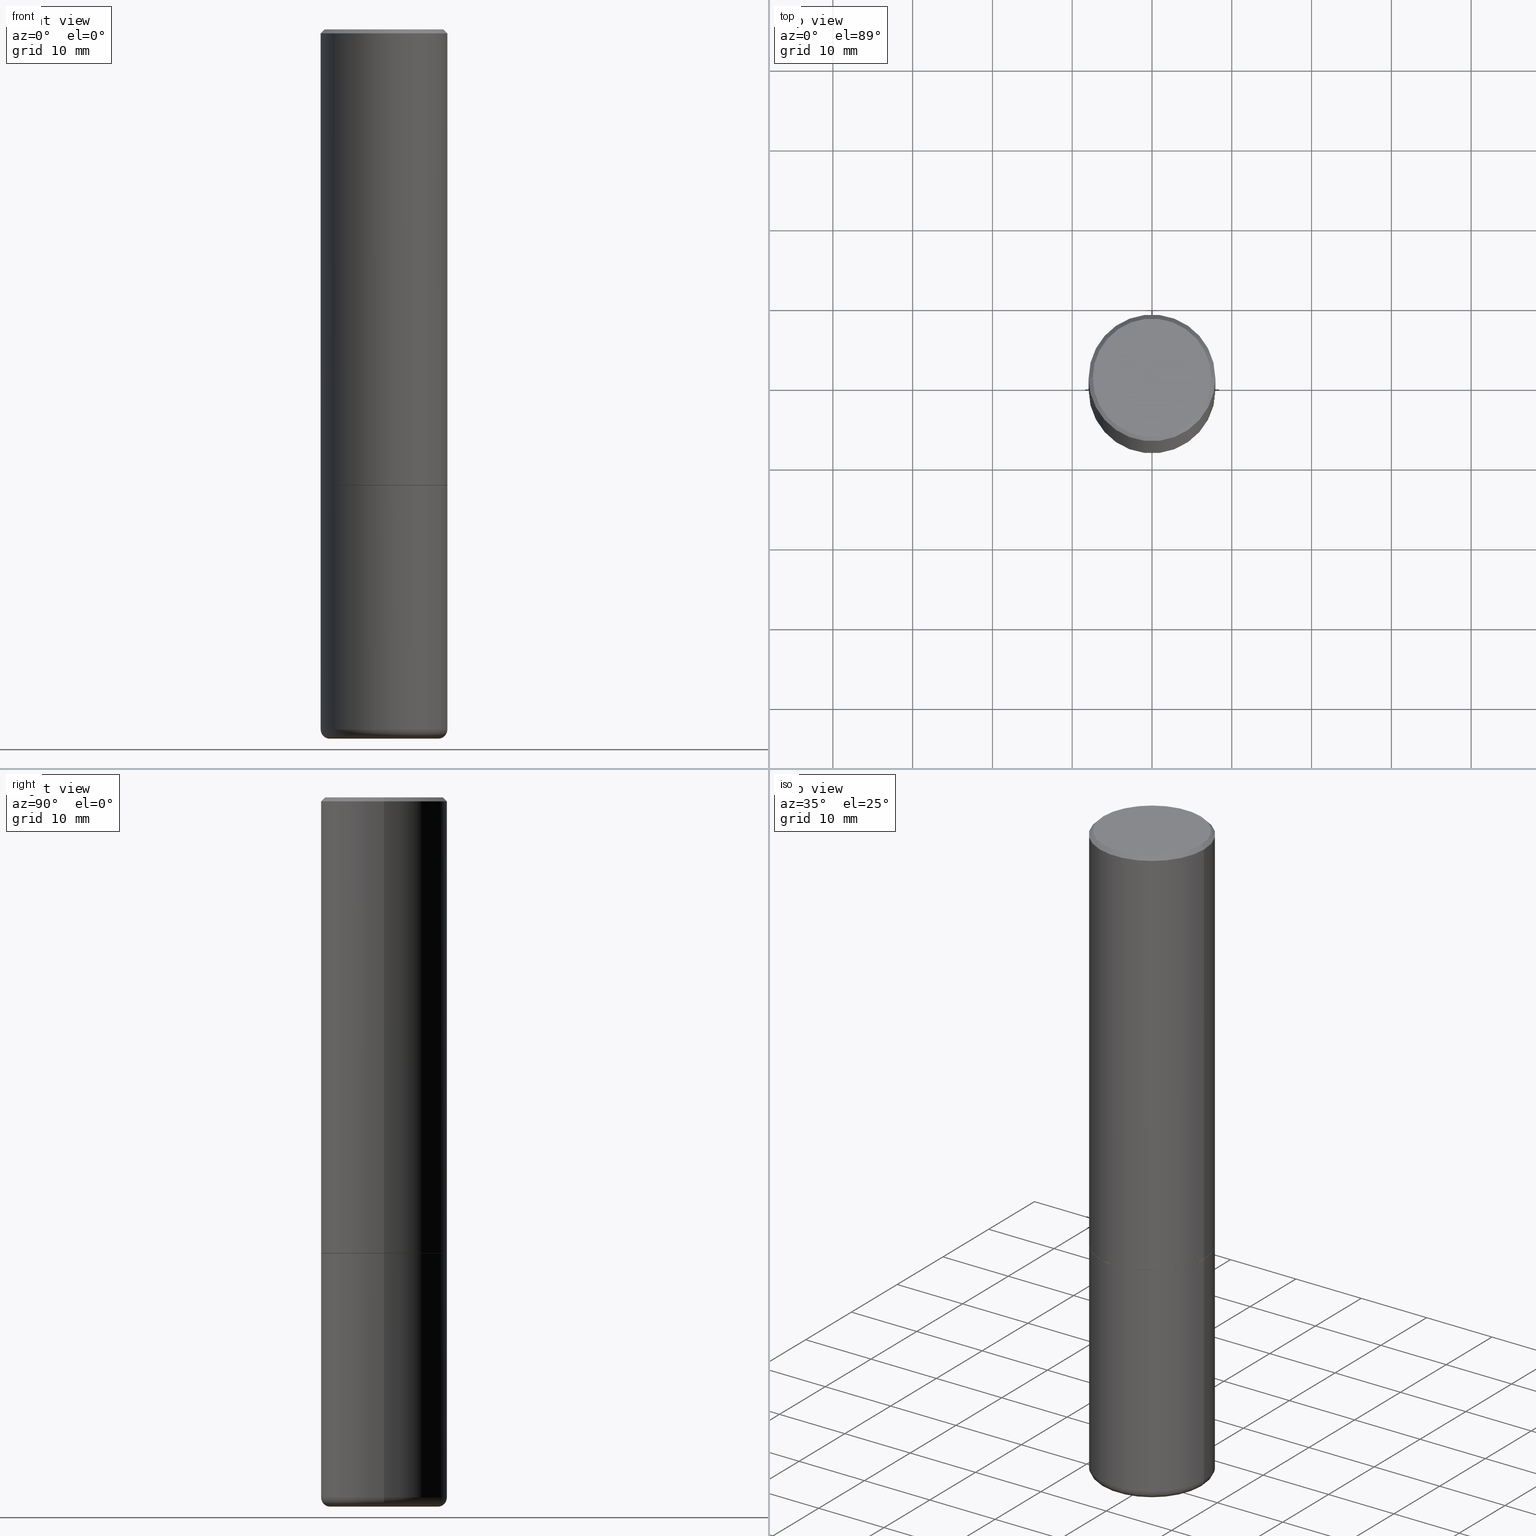
[diagram: canonical four-view strip — front | top / right | iso, engineering-drawing reading convention]
A machine part, canonical four-view strip (front | top / right | iso — engineering-drawing reading convention). The complete STEP part file that produces these views, byte-faithful:
ISO-10303-21;
HEADER;
FILE_DESCRIPTION (( 'STEP AP203' ),
    '1' );
FILE_NAME ('38079.STEP',
    '2023-03-22T20:16:01',
    ( '' ),
    ( '' ),
    'SwSTEP 2.0',
    'SolidWorks 2022',
    '' );
FILE_SCHEMA (( 'CONFIG_CONTROL_DESIGN' ));
ENDSEC;

DATA;
#1 = CARTESIAN_POINT ( 'NONE',  ( 0.000000000000000000, 0.000000000000000000, 0.000000000000000000 ) ) ;
#2 = EDGE_LOOP ( 'NONE', ( #237, #63, #130, #232 ) ) ;
#3 = CLOSED_SHELL ( 'NONE', ( #107, #300, #25, #86, #196, #268, #79, #350 ) ) ;
#4 = DIRECTION ( 'NONE',  ( 1.000000000000000000, -6.982962677686269077E-15, 0.000000000000000000 ) ) ;
#5 = CIRCLE ( 'NONE', #223, 0.3125000000000000000 ) ;
#6 = DIRECTION ( 'NONE',  ( 0.000000000000000000, 0.000000000000000000, 1.000000000000000000 ) ) ;
#7 = DIRECTION ( 'NONE',  ( -2.445468806185136877E-29, 3.491481338843145188E-15, 1.000000000000000000 ) ) ;
#8 = FACE_OUTER_BOUND ( 'NONE', #59, .T. ) ;
#9 = DIRECTION ( 'NONE',  ( -1.000000000000000000, 6.982962677686266711E-15, 0.000000000000000000 ) ) ;
#10 = CARTESIAN_POINT ( 'NONE',  ( -0.3125000000000000000, -7.739112131260931893E-15, -3.455061670936044216 ) ) ;
#11 = VERTEX_POINT ( 'NONE', #217 ) ;
#12 = FACE_OUTER_BOUND ( 'NONE', #153, .T. ) ;
#13 = EDGE_CURVE ( 'NONE', #442, #102, #303, .T. ) ;
#14 = FACE_OUTER_BOUND ( 'NONE', #299, .T. ) ;
#15 = AXIS2_PLACEMENT_3D ( 'NONE', #248, #353, #317 ) ;
#16 = LINE ( 'NONE', #122, #436 ) ;
#17 = FACE_OUTER_BOUND ( 'NONE', #339, .T. ) ;
#18 = DIRECTION ( 'NONE',  ( -2.445468806185136597E-29, 3.491481338843145583E-15, 1.000000000000000000 ) ) ;
#19 = DIRECTION ( 'NONE',  ( -0.9986295347545742773, 6.790662755453664522E-15, -0.05233595624293731902 ) ) ;
#20 = CC_DESIGN_PERSON_AND_ORGANIZATION_ASSIGNMENT ( #433, #121, ( #82 ) ) ;
#21 = CC_DESIGN_SECURITY_CLASSIFICATION ( #96, ( #258 ) ) ;
#22 = COORDINATED_UNIVERSAL_TIME_OFFSET ( 5, 0, .BEHIND. ) ;
#23 = LINE ( 'NONE', #163, #381 ) ;
#24 = CIRCLE ( 'NONE', #371, 0.3114999999999999991 ) ;
#25 = ADVANCED_FACE ( 'NONE', ( #242 ), #397, .T. ) ;
#26 = ORIENTED_EDGE ( 'NONE', *, *, #167, .T. ) ;
#27 = ORIENTED_EDGE ( 'NONE', *, *, #394, .T. ) ;
#28 = CIRCLE ( 'NONE', #366, 0.3114999999999999991 ) ;
#29 = LOCAL_TIME ( 16, 16, 1.000000000000000000, #288 ) ;
#30 = ORIENTED_EDGE ( 'NONE', *, *, #293, .T. ) ;
#31 = EDGE_LOOP ( 'NONE', ( #441, #170, #105, #140 ) ) ;
#32 = ADVANCED_FACE ( 'NONE', ( #383 ), #435, .F. ) ;
#33 = ORIENTED_EDGE ( 'NONE', *, *, #13, .T. ) ;
#34 = DIRECTION ( 'NONE',  ( 1.000000000000000000, -6.982962677686269077E-15, 0.000000000000000000 ) ) ;
#35 = CARTESIAN_POINT ( 'NONE',  ( 0.2651448819690678804, -1.407168150092053958E-14, -3.500000000000000000 ) ) ;
#36 = LINE ( 'NONE', #176, #404 ) ;
#37 = DIRECTION ( 'NONE',  ( 1.000000000000000000, -6.982962677686265133E-15, 0.000000000000000000 ) ) ;
#38 = LINE ( 'NONE', #354, #310 ) ;
#39 = DIRECTION ( 'NONE',  ( 2.445468806185136597E-29, -3.491481338843145583E-15, -1.000000000000000000 ) ) ;
#40 = CARTESIAN_POINT ( 'NONE',  ( -1.043851414335219820E-46, 1.490343170380447200E-32, 4.268512490100411279E-18 ) ) ;
#41 = CARTESIAN_POINT ( 'NONE',  ( -0.3125000000000000000, 2.220446049250313081E-15, -1.537167215704658232E-29 ) ) ;
#42 = ORIENTED_EDGE ( 'NONE', *, *, #372, .T. ) ;
#43 = LINE ( 'NONE', #307, #160 ) ;
#44 = DIRECTION ( 'NONE',  ( -2.445468806185136597E-29, 3.491481338843145583E-15, 1.000000000000000000 ) ) ;
#45 = DIRECTION ( 'NONE',  ( -2.445468806185136597E-29, 3.491481338843145583E-15, 1.000000000000000000 ) ) ;
#46 = LOCAL_TIME ( 16, 16, 1.000000000000000000, #152 ) ;
#47 = APPROVAL_ROLE ( '' ) ;
#48 = DIRECTION ( 'NONE',  ( -1.000000000000000000, 6.982962677686266711E-15, 0.000000000000000000 ) ) ;
#49 = CC_DESIGN_PERSON_AND_ORGANIZATION_ASSIGNMENT ( #229, #261, ( #96 ) ) ;
#50 = PERSON_AND_ORGANIZATION ( #146, #400 ) ;
#51 = FACE_OUTER_BOUND ( 'NONE', #74, .T. ) ;
#52 = MANIFOLD_SOLID_BREP ( 'Body-Move/Copy2[2]', #3 ) ;
#53 = CONICAL_SURFACE ( 'NONE', #139, 0.3124999999999998335, 0.7853981633974473908 ) ;
#54 = EDGE_CURVE ( 'NONE', #179, #337, #278, .T. ) ;
#55 = CC_DESIGN_DATE_AND_TIME_ASSIGNMENT ( #195, #254, ( #96 ) ) ;
#56 = AXIS2_PLACEMENT_3D ( 'NONE', #349, #379, #418 ) ;
#57 = AXIS2_PLACEMENT_3D ( 'NONE', #177, #285, #65 ) ;
#58 = ORIENTED_EDGE ( 'NONE', *, *, #365, .F. ) ;
#59 = EDGE_LOOP ( 'NONE', ( #93, #405, #94, #409 ) ) ;
#60 = ORIENTED_EDGE ( 'NONE', *, *, #365, .T. ) ;
#61 = VECTOR ( 'NONE', #312, 39.37007874015748143 ) ;
#62 = LOCAL_TIME ( 16, 16, 1.000000000000000000, #22 ) ;
#63 = ORIENTED_EDGE ( 'NONE', *, *, #387, .T. ) ;
#64 = EDGE_LOOP ( 'NONE', ( #172, #336, #27, #403 ) ) ;
#65 = DIRECTION ( 'NONE',  ( 1.000000000000000000, -6.982962677686266711E-15, 4.876176775795936353E-29 ) ) ;
#66 = CARTESIAN_POINT ( 'NONE',  ( -0.3125000000000000000, -7.739112131260931893E-15, -2.249999999999999556 ) ) ;
#67 = LINE ( 'NONE', #209, #61 ) ;
#68 = DIRECTION ( 'NONE',  ( -2.445468806185136597E-29, 3.491481338843145583E-15, 1.000000000000000000 ) ) ;
#69 = CARTESIAN_POINT ( 'NONE',  ( -0.2675000000000000155, -1.016258153046714615E-14, -3.455061670936044216 ) ) ;
#70 = CARTESIAN_POINT ( 'NONE',  ( 4.890937612370278413E-31, -6.982962677686297772E-17, -0.02000000000000002123 ) ) ;
#71 = CARTESIAN_POINT ( 'NONE',  ( -0.2924999999999998157, 2.077431396611662611E-15, 4.268512490086005323E-18 ) ) ;
#72 = CIRCLE ( 'NONE', #438, 0.2924999999999998157 ) ;
#73 =( NAMED_UNIT ( * ) PLANE_ANGLE_UNIT ( ) SI_UNIT ( $, .RADIAN. ) );
#74 = EDGE_LOOP ( 'NONE', ( #199, #239 ) ) ;
#75 = EDGE_CURVE ( 'NONE', #375, #102, #87, .T. ) ;
#76 =( CONVERSION_BASED_UNIT ( 'INCH', #147 ) LENGTH_UNIT ( ) NAMED_UNIT ( #301 ) );
#77 = FACE_OUTER_BOUND ( 'NONE', #31, .T. ) ;
#78 = CARTESIAN_POINT ( 'NONE',  ( -0.3125000000000000000, -1.740639529667232739E-15, -2.248999999999999222 ) ) ;
#79 = ADVANCED_FACE ( 'NONE', ( #14 ), #245, .F. ) ;
#80 = ORIENTED_EDGE ( 'NONE', *, *, #54, .T. ) ;
#81 = CIRCLE ( 'NONE', #333, 0.2651448819690678804 ) ;
#82 = PRODUCT_DEFINITION ( 'UNKNOWN', '', #258, #135 ) ;
#83 = SHAPE_DEFINITION_REPRESENTATION ( #189, #326 ) ;
#84 = PRODUCT ( '38079', '38079', '', ( #321 ) ) ;
#85 = LINE ( 'NONE', #364, #412 ) ;
#86 = ADVANCED_FACE ( 'NONE', ( #150 ), #53, .T. ) ;
#87 = CIRCLE ( 'NONE', #15, 0.04499999999999999833 ) ;
#88 = CIRCLE ( 'NONE', #296, 0.3125000000000000000 ) ;
#89 = CC_DESIGN_APPROVAL ( #128, ( #258 ) ) ;
#90 = DATE_TIME_ROLE ( 'creation_date' ) ;
#91 = CARTESIAN_POINT ( 'NONE',  ( -0.3114999999999999991, -5.642492390504364798E-15, -2.249999999999999556 ) ) ;
#92 = EDGE_CURVE ( 'NONE', #99, #235, #28, .T. ) ;
#93 = ORIENTED_EDGE ( 'NONE', *, *, #331, .F. ) ;
#94 = ORIENTED_EDGE ( 'NONE', *, *, #145, .T. ) ;
#95 = AXIS2_PLACEMENT_3D ( 'NONE', #69, #352, #241 ) ;
#96 = SECURITY_CLASSIFICATION ( '', '', #286 ) ;
#97 = VERTEX_POINT ( 'NONE', #184 ) ;
#98 = EDGE_LOOP ( 'NONE', ( #134, #202, #385 ) ) ;
#99 = VERTEX_POINT ( 'NONE', #250 ) ;
#100 = CIRCLE ( 'NONE', #114, 0.3125000000000000000 ) ;
#101 = DIRECTION ( 'NONE',  ( -2.445468806185136597E-29, 3.491481338843145583E-15, 1.000000000000000000 ) ) ;
#102 = VERTEX_POINT ( 'NONE', #148 ) ;
#103 = EDGE_CURVE ( 'NONE', #165, #337, #67, .T. ) ;
#104 = DIRECTION ( 'NONE',  ( -0.7071067811865469066, 2.468850131082250355E-15, -0.7071067811865481278 ) ) ;
#105 = ORIENTED_EDGE ( 'NONE', *, *, #293, .F. ) ;
#106 = CYLINDRICAL_SURFACE ( 'NONE', #357, 0.3124999999999998890 ) ;
#107 = ADVANCED_FACE ( 'NONE', ( #77 ), #185, .T. ) ;
#108 = DIRECTION ( 'NONE',  ( -2.445468806185136877E-29, 3.491481338843145188E-15, 1.000000000000000000 ) ) ;
#109 = DIRECTION ( 'NONE',  ( -2.445468806185136597E-29, 3.491481338843145583E-15, 1.000000000000000000 ) ) ;
#110 = DIRECTION ( 'NONE',  ( -2.445468806185136597E-29, 3.491481338843145583E-15, 1.000000000000000000 ) ) ;
#111 = CARTESIAN_POINT ( 'NONE',  ( 0.3125000000000000000, -2.182175836776958347E-15, 1.523805242436230075E-29 ) ) ;
#112 = AXIS2_PLACEMENT_3D ( 'NONE', #388, #39, #143 ) ;
#113 = ORIENTED_EDGE ( 'NONE', *, *, #167, .F. ) ;
#114 = AXIS2_PLACEMENT_3D ( 'NONE', #173, #309, #4 ) ;
#115 = DIRECTION ( 'NONE',  ( 1.000000000000000000, -6.982962677686265133E-15, 0.000000000000000000 ) ) ;
#116 = DIRECTION ( 'NONE',  ( 1.000000000000000000, -6.982962677686269077E-15, 0.000000000000000000 ) ) ;
#117 = CARTESIAN_POINT ( 'NONE',  ( 5.502304813916556222E-29, -7.855833012397076871E-15, -2.249999999999999556 ) ) ;
#118 = CARTESIAN_POINT ( 'NONE',  ( 5.502304813916556222E-29, -7.855833012397076871E-15, -2.249999999999999556 ) ) ;
#119 = DIRECTION ( 'NONE',  ( -1.000000000000000000, 6.982962677686265922E-15, -4.876176775795935793E-29 ) ) ;
#120 = EDGE_CURVE ( 'NONE', #407, #179, #36, .T. ) ;
#121 = PERSON_AND_ORGANIZATION_ROLE ( 'creator' ) ;
#122 = CARTESIAN_POINT ( 'NONE',  ( 0.3114999999999999991, -1.003102588649634920E-14, -2.249999999999999556 ) ) ;
#123 = DIRECTION ( 'NONE',  ( -2.445468806185136597E-29, 3.491481338843145583E-15, 1.000000000000000000 ) ) ;
#124 = VECTOR ( 'NONE', #410, 39.37007874015748143 ) ;
#125 = CARTESIAN_POINT ( 'NONE',  ( -0.3124999999999998335, 2.112346210000093866E-15, -0.02000000000000002123 ) ) ;
#126 = PERSON_AND_ORGANIZATION ( #146, #400 ) ;
#127 = CIRCLE ( 'NONE', #320, 0.3125000000000000000 ) ;
#128 = APPROVAL ( #283, 'UNSPECIFIED' ) ;
#129 = DIRECTION ( 'NONE',  ( -2.445468806185136597E-29, 3.491481338843145583E-15, 1.000000000000000000 ) ) ;
#130 = ORIENTED_EDGE ( 'NONE', *, *, #75, .T. ) ;
#131 = AXIS2_PLACEMENT_3D ( 'NONE', #356, #221, #115 ) ;
#132 = ORIENTED_EDGE ( 'NONE', *, *, #372, .F. ) ;
#133 = EDGE_CURVE ( 'NONE', #375, #253, #399, .T. ) ;
#134 = ORIENTED_EDGE ( 'NONE', *, *, #340, .F. ) ;
#135 = DESIGN_CONTEXT ( 'detailed design', #319, 'design' ) ;
#136 = CARTESIAN_POINT ( 'NONE',  ( 8.449245539719989979E-29, -1.206328334862541465E-14, -3.455061670936044216 ) ) ;
#137 = CC_DESIGN_DATE_AND_TIME_ASSIGNMENT ( #158, #90, ( #82 ) ) ;
#138 = ORIENTED_EDGE ( 'NONE', *, *, #92, .F. ) ;
#139 = AXIS2_PLACEMENT_3D ( 'NONE', #70, #420, #187 ) ;
#140 = ORIENTED_EDGE ( 'NONE', *, *, #145, .F. ) ;
#141 = DIRECTION ( 'NONE',  ( 1.000000000000000000, -6.982962677686266711E-15, 4.876176775795935232E-29 ) ) ;
#142 = DIRECTION ( 'NONE',  ( 1.000000000000000000, 0.000000000000000000, 0.000000000000000000 ) ) ;
#143 = DIRECTION ( 'NONE',  ( -1.000000000000000000, 6.982962677686265133E-15, 0.000000000000000000 ) ) ;
#144 = DIRECTION ( 'NONE',  ( 1.000000000000000000, -6.982962677686265922E-15, 0.000000000000000000 ) ) ;
#145 = EDGE_CURVE ( 'NONE', #235, #407, #16, .T. ) ;
#146 = PERSON ( 'UNSPECIFIED', 'UNSPECIFIED', 'UNSPECIFIED', ('UNSPECIFIED'), ('UNSPECIFIED'), ('UNSPECIFIED') ) ;
#147 = LENGTH_MEASURE_WITH_UNIT ( LENGTH_MEASURE( 0.02539999999999999897 ), #208 );
#148 = CARTESIAN_POINT ( 'NONE',  ( 0.3125000000000000000, -1.424545918540237458E-14, -3.455061670936044216 ) ) ;
#149 = CARTESIAN_POINT ( 'NONE',  ( 0.3114999999999999991, -1.003102588649634920E-14, -2.249999999999999556 ) ) ;
#150 = FACE_OUTER_BOUND ( 'NONE', #64, .T. ) ;
#151 = DIRECTION ( 'NONE',  ( -2.445468806185136597E-29, 3.491481338843145583E-15, 1.000000000000000000 ) ) ;
#152 = COORDINATED_UNIVERSAL_TIME_OFFSET ( 5, 0, .BEHIND. ) ;
#153 = EDGE_LOOP ( 'NONE', ( #26, #60 ) ) ;
#154 = CARTESIAN_POINT ( 'NONE',  ( -0.2651448819690678804, -1.008952714362760311E-14, -3.500000000000000000 ) ) ;
#155 = DIRECTION ( 'NONE',  ( 1.000000000000000000, -6.982962677686269077E-15, 0.000000000000000000 ) ) ;
#156 = EDGE_CURVE ( 'NONE', #165, #407, #127, .T. ) ;
#157 = PLANE ( 'NONE',  #197 ) ;
#158 = DATE_AND_TIME ( #427, #46 ) ;
#159 = CYLINDRICAL_SURFACE ( 'NONE', #279, 0.3125000000000000000 ) ;
#160 = VECTOR ( 'NONE', #183, 39.37007874015748854 ) ;
#161 = ADVANCED_FACE ( 'NONE', ( #287 ), #338, .F. ) ;
#162 = PERSON_AND_ORGANIZATION ( #146, #400 ) ;
#163 = CARTESIAN_POINT ( 'NONE',  ( 0.3124999999999998335, -2.213735251080465334E-15, -0.02000000000000002123 ) ) ;
#164 = VECTOR ( 'NONE', #360, 39.37007874015748143 ) ;
#165 = VERTEX_POINT ( 'NONE', #78 ) ;
#166 = ORIENTED_EDGE ( 'NONE', *, *, #280, .T. ) ;
#167 = EDGE_CURVE ( 'NONE', #411, #440, #168, .T. ) ;
#168 = CIRCLE ( 'NONE', #131, 0.3125000000000000000 ) ;
#169 = ORIENTED_EDGE ( 'NONE', *, *, #133, .T. ) ;
#170 = ORIENTED_EDGE ( 'NONE', *, *, #331, .T. ) ;
#171 = LINE ( 'NONE', #41, #272 ) ;
#172 = ORIENTED_EDGE ( 'NONE', *, *, #324, .F. ) ;
#173 = CARTESIAN_POINT ( 'NONE',  ( 5.499859345110370619E-29, -7.852341531058232286E-15, -2.248999999999999222 ) ) ;
#174 = CIRCLE ( 'NONE', #95, 0.04499999999999999833 ) ;
#175 = PERSON_AND_ORGANIZATION_ROLE ( 'design_owner' ) ;
#176 = CARTESIAN_POINT ( 'NONE',  ( 0.3124999999999998890, -2.182175836776957558E-15, 1.523805242436229235E-29 ) ) ;
#177 = CARTESIAN_POINT ( 'NONE',  ( 0.000000000000000000, 0.000000000000000000, 0.000000000000000000 ) ) ;
#178 = CARTESIAN_POINT ( 'NONE',  ( 8.559140821647976968E-29, -1.222018468595100934E-14, -3.500000000000000000 ) ) ;
#179 = VERTEX_POINT ( 'NONE', #318 ) ;
#180 = DIRECTION ( 'NONE',  ( -2.445468806185136597E-29, 3.491481338843145583E-15, 1.000000000000000000 ) ) ;
#181 = CARTESIAN_POINT ( 'NONE',  ( 0.3125000000000000000, -1.003451736783519063E-14, -2.248999999999999222 ) ) ;
#182 = DIRECTION ( 'NONE',  ( -2.438088387897960049E-29, 3.491481338843145188E-15, 1.000000000000000000 ) ) ;
#183 = DIRECTION ( 'NONE',  ( 0.9986295347545742773, -7.033825938272000278E-15, -0.05233595624293731902 ) ) ;
#184 = CARTESIAN_POINT ( 'NONE',  ( 0.2924999999999998157, -2.110215457714318748E-15, 4.268512490114932791E-18 ) ) ;
#185 = CONICAL_SURFACE ( 'NONE', #392, 0.3114999999999999991, 0.7853981633972775267 ) ;
#186 = DIRECTION ( 'NONE',  ( 1.000000000000000000, -6.982962677686266711E-15, 4.876067333457692840E-29 ) ) ;
#187 = DIRECTION ( 'NONE',  ( -1.000000000000000000, 6.982962677686265133E-15, 0.000000000000000000 ) ) ;
#188 = DATE_AND_TIME ( #395, #234 ) ;
#189 = PRODUCT_DEFINITION_SHAPE ( 'NONE', 'NONE',  #82 ) ;
#190 = DATE_AND_TIME ( #330, #406 ) ;
#191 = AXIS2_PLACEMENT_3D ( 'NONE', #274, #109, #116 ) ;
#192 = CARTESIAN_POINT ( 'NONE',  ( 2.042516583223231356E-15, 0.2924999999999998157, -1.019124035366569212E-15 ) ) ;
#193 = AXIS2_PLACEMENT_3D ( 'NONE', #380, #68, #37 ) ;
#194 = AXIS2_PLACEMENT_3D ( 'NONE', #214, #44, #322 ) ;
#195 = DATE_AND_TIME ( #230, #29 ) ;
#196 = ADVANCED_FACE ( 'NONE', ( #17 ), #210, .T. ) ;
#197 = AXIS2_PLACEMENT_3D ( 'NONE', #192, #432, #224 ) ;
#198 = ORIENTED_EDGE ( 'NONE', *, *, #240, .F. ) ;
#199 = ORIENTED_EDGE ( 'NONE', *, *, #231, .T. ) ;
#200 = EDGE_LOOP ( 'NONE', ( #281, #437, #236 ) ) ;
#201 = AXIS2_PLACEMENT_3D ( 'NONE', #249, #151, #141 ) ;
#202 = ORIENTED_EDGE ( 'NONE', *, *, #431, .T. ) ;
#203 = MANIFOLD_SOLID_BREP ( 'Body-Move/Copy2[1]', #332 ) ;
#204 = DIRECTION ( 'NONE',  ( 1.000000000000000000, -6.982962677686266711E-15, 0.000000000000000000 ) ) ;
#205 = EDGE_LOOP ( 'NONE', ( #30, #367, #370, #269 ) ) ;
#206 = CARTESIAN_POINT ( 'NONE',  ( 5.502304813916556222E-29, -7.855833012397076871E-15, -2.249999999999999556 ) ) ;
#207 = ADVANCED_FACE ( 'NONE', ( #246 ), #238, .T. ) ;
#208 =( LENGTH_UNIT ( ) NAMED_UNIT ( * ) SI_UNIT ( $, .METRE. ) );
#209 = CARTESIAN_POINT ( 'NONE',  ( -0.3124999999999998890, 2.220446049250312292E-15, -1.537167215704657391E-29 ) ) ;
#210 = CYLINDRICAL_SURFACE ( 'NONE', #201, 0.3124999999999998890 ) ;
#211 = CIRCLE ( 'NONE', #193, 0.3124999999999998335 ) ;
#212 = APPROVAL_STATUS ( 'not_yet_approved' ) ;
#213 = APPROVAL_PERSON_ORGANIZATION ( #50, #128, #363 ) ;
#214 = CARTESIAN_POINT ( 'NONE',  ( 8.559140821647976968E-29, -1.222018468595100934E-14, -3.500000000000000000 ) ) ;
#215 = CARTESIAN_POINT ( 'NONE',  ( -1.043851414335219820E-46, 1.490343170380447200E-32, 4.268512490100411279E-18 ) ) ;
#216 = DIRECTION ( 'NONE',  ( -2.445468806185136597E-29, 3.491481338843145583E-15, 1.000000000000000000 ) ) ;
#217 = CARTESIAN_POINT ( 'NONE',  ( 8.525821692348990207E-29, -1.217071987343207654E-14, -3.486104345547738514 ) ) ;
#218 = EDGE_CURVE ( 'NONE', #235, #99, #24, .T. ) ;
#219 = APPLICATION_PROTOCOL_DEFINITION ( 'international standard', 'config_control_design', 1994, #298 ) ;
#220 = DIRECTION ( 'NONE',  ( 1.000000000000000000, -6.982962677686265922E-15, 0.000000000000000000 ) ) ;
#221 = DIRECTION ( 'NONE',  ( -2.445468806185136597E-29, 3.491481338843145583E-15, 1.000000000000000000 ) ) ;
#222 = DIRECTION ( 'NONE',  ( 2.445468806185136597E-29, -3.491481338843145583E-15, -1.000000000000000000 ) ) ;
#223 = AXIS2_PLACEMENT_3D ( 'NONE', #257, #129, #378 ) ;
#224 = DIRECTION ( 'NONE',  ( -1.000000000000000000, 6.982962677686265922E-15, -4.876176775795935793E-29 ) ) ;
#225 = COORDINATED_UNIVERSAL_TIME_OFFSET ( 5, 0, .BEHIND. ) ;
#226 = DIRECTION ( 'NONE',  ( 1.000000000000000000, -6.982962677686266711E-15, 4.876176775795935232E-29 ) ) ;
#227 = APPROVAL_DATE_TIME ( #424, #264 ) ;
#228 = ADVANCED_FACE ( 'NONE', ( #12 ), #251, .F. ) ;
#229 = PERSON_AND_ORGANIZATION ( #146, #400 ) ;
#230 = CALENDAR_DATE ( 2023, 22, 3 ) ;
#231 = EDGE_CURVE ( 'NONE', #265, #97, #362, .T. ) ;
#232 = ORIENTED_EDGE ( 'NONE', *, *, #13, .F. ) ;
#233 = AXIS2_PLACEMENT_3D ( 'NONE', #345, #373, #9 ) ;
#234 = LOCAL_TIME ( 16, 16, 1.000000000000000000, #260 ) ;
#235 = VERTEX_POINT ( 'NONE', #149 ) ;
#236 = ORIENTED_EDGE ( 'NONE', *, *, #133, .F. ) ;
#237 = ORIENTED_EDGE ( 'NONE', *, *, #408, .F. ) ;
#238 = TOROIDAL_SURFACE ( 'NONE', #256, 0.2675000000000000155, 0.04499999999999999140 ) ;
#239 = ORIENTED_EDGE ( 'NONE', *, *, #295, .T. ) ;
#240 = EDGE_CURVE ( 'NONE', #337, #179, #211, .T. ) ;
#241 = DIRECTION ( 'NONE',  ( -1.000000000000000000, 7.105427357600990815E-15, 0.000000000000000000 ) ) ;
#242 = FACE_OUTER_BOUND ( 'NONE', #325, .T. ) ;
#243 = CARTESIAN_POINT ( 'NONE',  ( 0.000000000000000000, 0.000000000000000000, 0.000000000000000000 ) ) ;
#244 =( NAMED_UNIT ( * ) SI_UNIT ( $, .STERADIAN. ) SOLID_ANGLE_UNIT ( ) );
#245 = PLANE ( 'NONE',  #267 ) ;
#246 = FACE_OUTER_BOUND ( 'NONE', #2, .T. ) ;
#247 = FACE_OUTER_BOUND ( 'NONE', #305, .T. ) ;
#248 = CARTESIAN_POINT ( 'NONE',  ( 0.2675000000000000155, -1.393122586490649131E-14, -3.455061670936044216 ) ) ;
#249 = CARTESIAN_POINT ( 'NONE',  ( 0.000000000000000000, 0.000000000000000000, 0.000000000000000000 ) ) ;
#250 = CARTESIAN_POINT ( 'NONE',  ( -0.3114999999999999991, -5.637193936156142396E-15, -2.249999999999999556 ) ) ;
#251 = PLANE ( 'NONE',  #346 ) ;
#252 = APPROVAL_STATUS ( 'not_yet_approved' ) ;
#253 = VERTEX_POINT ( 'NONE', #154 ) ;
#254 = DATE_TIME_ROLE ( 'classification_date' ) ;
#255 = CARTESIAN_POINT ( 'NONE',  ( 5.499859345110370619E-29, -7.852341531058232286E-15, -2.248999999999999222 ) ) ;
#256 = AXIS2_PLACEMENT_3D ( 'NONE', #344, #282, #423 ) ;
#257 = CARTESIAN_POINT ( 'NONE',  ( 5.502304813916556222E-29, -7.855833012397075293E-15, -2.249999999999999556 ) ) ;
#258 = PRODUCT_DEFINITION_FORMATION_WITH_SPECIFIED_SOURCE ( 'ANY', '', #84, .NOT_KNOWN. ) ;
#259 = CC_DESIGN_PERSON_AND_ORGANIZATION_ASSIGNMENT ( #393, #358, ( #258 ) ) ;
#260 = COORDINATED_UNIVERSAL_TIME_OFFSET ( 5, 0, .BEHIND. ) ;
#261 = PERSON_AND_ORGANIZATION_ROLE ( 'classification_officer' ) ;
#262 = APPROVAL_DATE_TIME ( #188, #390 ) ;
#263 = ADVANCED_FACE ( 'NONE', ( #313 ), #323, .T. ) ;
#264 = APPROVAL ( #252, 'UNSPECIFIED' ) ;
#265 = VERTEX_POINT ( 'NONE', #71 ) ;
#266 = ORIENTED_EDGE ( 'NONE', *, *, #156, .T. ) ;
#267 = AXIS2_PLACEMENT_3D ( 'NONE', #355, #182, #277 ) ;
#268 = ADVANCED_FACE ( 'NONE', ( #8 ), #382, .T. ) ;
#269 = ORIENTED_EDGE ( 'NONE', *, *, #120, .F. ) ;
#270 = ORIENTED_EDGE ( 'NONE', *, *, #295, .F. ) ;
#271 = ORIENTED_EDGE ( 'NONE', *, *, #401, .T. ) ;
#272 = VECTOR ( 'NONE', #108, 39.37007874015748143 ) ;
#273 = PERSON_AND_ORGANIZATION ( #146, #400 ) ;
#274 = CARTESIAN_POINT ( 'NONE',  ( 8.449245539719989979E-29, -1.206328334862541465E-14, -3.455061670936044216 ) ) ;
#275 = DIRECTION ( 'NONE',  ( 1.000000000000000000, -6.982962677686266711E-15, 4.876067333457692840E-29 ) ) ;
#276 = CARTESIAN_POINT ( 'NONE',  ( 5.502304813916556222E-29, -7.855833012397076871E-15, -2.249999999999999556 ) ) ;
#277 = DIRECTION ( 'NONE',  ( 1.000000000000000000, -6.982962677686265922E-15, 4.876176775795935793E-29 ) ) ;
#278 = CIRCLE ( 'NONE', #56, 0.3124999999999998335 ) ;
#279 = AXIS2_PLACEMENT_3D ( 'NONE', #294, #123, #290 ) ;
#280 = EDGE_CURVE ( 'NONE', #102, #442, #88, .T. ) ;
#281 = ORIENTED_EDGE ( 'NONE', *, *, #431, .F. ) ;
#282 = DIRECTION ( 'NONE',  ( -2.445468806185136597E-29, 3.491481338843145583E-15, 1.000000000000000000 ) ) ;
#283 = APPROVAL_STATUS ( 'not_yet_approved' ) ;
#284 = EDGE_LOOP ( 'NONE', ( #166, #42, #113, #335 ) ) ;
#285 = DIRECTION ( 'NONE',  ( -2.445468806185136597E-29, 3.491481338843145583E-15, 1.000000000000000000 ) ) ;
#286 = SECURITY_CLASSIFICATION_LEVEL ( 'unclassified' ) ;
#287 = FACE_OUTER_BOUND ( 'NONE', #200, .T. ) ;
#288 = COORDINATED_UNIVERSAL_TIME_OFFSET ( 5, 0, .BEHIND. ) ;
#289 = AXIS2_PLACEMENT_3D ( 'NONE', #136, #101, #413 ) ;
#290 = DIRECTION ( 'NONE',  ( 1.000000000000000000, -6.982962677686266711E-15, 4.876176775795936353E-29 ) ) ;
#291 =( GEOMETRIC_REPRESENTATION_CONTEXT ( 3 ) GLOBAL_UNCERTAINTY_ASSIGNED_CONTEXT ( ( #402 ) ) GLOBAL_UNIT_ASSIGNED_CONTEXT ( ( #76, #73, #244 ) ) REPRESENTATION_CONTEXT ( 'NONE', 'WORKASPACE' ) );
#292 = PERSON_AND_ORGANIZATION_ROLE ( 'design_supplier' ) ;
#293 = EDGE_CURVE ( 'NONE', #407, #165, #100, .T. ) ;
#294 = CARTESIAN_POINT ( 'NONE',  ( 0.000000000000000000, 0.000000000000000000, 0.000000000000000000 ) ) ;
#295 = EDGE_CURVE ( 'NONE', #97, #265, #72, .T. ) ;
#296 = AXIS2_PLACEMENT_3D ( 'NONE', #342, #110, #34 ) ;
#297 = CC_DESIGN_APPROVAL ( #264, ( #96 ) ) ;
#298 = APPLICATION_CONTEXT ( 'configuration controlled 3d designs of mechanical parts and assemblies' ) ;
#299 = EDGE_LOOP ( 'NONE', ( #341, #138 ) ) ;
#300 = ADVANCED_FACE ( 'NONE', ( #415 ), #106, .T. ) ;
#301 = DIMENSIONAL_EXPONENTS ( 1.000000000000000000, 0.000000000000000000, 0.000000000000000000, 0.000000000000000000, 0.000000000000000000, 0.000000000000000000, 0.000000000000000000 ) ;
#302 = ORIENTED_EDGE ( 'NONE', *, *, #324, .T. ) ;
#303 = CIRCLE ( 'NONE', #191, 0.3125000000000000000 ) ;
#304 = AXIS2_PLACEMENT_3D ( 'NONE', #206, #351, #144 ) ;
#305 = EDGE_LOOP ( 'NONE', ( #169, #422, #369, #359 ) ) ;
#306 = ORIENTED_EDGE ( 'NONE', *, *, #120, .T. ) ;
#307 = CARTESIAN_POINT ( 'NONE',  ( 9.483943079349222990E-19, -1.217166826773992568E-14, -3.486104345547738514 ) ) ;
#308 = ORIENTED_EDGE ( 'NONE', *, *, #394, .F. ) ;
#309 = DIRECTION ( 'NONE',  ( -2.445468806185136597E-29, 3.491481338843145583E-15, 1.000000000000000000 ) ) ;
#310 = VECTOR ( 'NONE', #104, 39.37007874015748143 ) ;
#311 = LINE ( 'NONE', #111, #124 ) ;
#312 = DIRECTION ( 'NONE',  ( -2.445468806185136877E-29, 3.491481338843145188E-15, 1.000000000000000000 ) ) ;
#313 = FACE_OUTER_BOUND ( 'NONE', #284, .T. ) ;
#314 = APPROVAL_ROLE ( '' ) ;
#315 = CARTESIAN_POINT ( 'NONE',  ( 1.048034588882512041E-27, -1.496315634977850062E-13, -42.85618308570521862 ) ) ;
#316 = DIRECTION ( 'NONE',  ( 1.000000000000000000, -6.982962677686265922E-15, 0.000000000000000000 ) ) ;
#317 = DIRECTION ( 'NONE',  ( 1.000000000000000000, -6.982962677686269077E-15, 0.000000000000000000 ) ) ;
#318 = CARTESIAN_POINT ( 'NONE',  ( 0.3124999999999998335, -2.213735251080465334E-15, -0.02000000000000002123 ) ) ;
#319 = APPLICATION_CONTEXT ( 'configuration controlled 3d designs of mechanical parts and assemblies' ) ;
#320 = AXIS2_PLACEMENT_3D ( 'NONE', #255, #18, #155 ) ;
#321 = MECHANICAL_CONTEXT ( 'NONE', #298, 'mechanical' ) ;
#322 = DIRECTION ( 'NONE',  ( 1.000000000000000000, -6.982962677686266711E-15, 0.000000000000000000 ) ) ;
#323 = CYLINDRICAL_SURFACE ( 'NONE', #57, 0.3125000000000000000 ) ;
#324 = EDGE_CURVE ( 'NONE', #97, #179, #23, .T. ) ;
#325 = EDGE_LOOP ( 'NONE', ( #270, #302, #80, #308 ) ) ;
#326 = ADVANCED_BREP_SHAPE_REPRESENTATION ( '38079', ( #203, #52, #328 ), #291 ) ;
#327 = AXIS2_PLACEMENT_3D ( 'NONE', #215, #45, #186 ) ;
#328 = AXIS2_PLACEMENT_3D ( 'NONE', #1, #6, #142 ) ;
#329 = ADVANCED_FACE ( 'NONE', ( #361 ), #159, .T. ) ;
#330 = CALENDAR_DATE ( 2023, 22, 3 ) ;
#331 = EDGE_CURVE ( 'NONE', #99, #165, #434, .T. ) ;
#332 = CLOSED_SHELL ( 'NONE', ( #32, #416, #263, #228, #329, #207, #161 ) ) ;
#333 = AXIS2_PLACEMENT_3D ( 'NONE', #178, #216, #204 ) ;
#334 = CC_DESIGN_APPROVAL ( #390, ( #82 ) ) ;
#335 = ORIENTED_EDGE ( 'NONE', *, *, #401, .F. ) ;
#336 = ORIENTED_EDGE ( 'NONE', *, *, #231, .F. ) ;
#337 = VERTEX_POINT ( 'NONE', #125 ) ;
#338 = CONICAL_SURFACE ( 'NONE', #233, 751.2258538476612557, 1.518436449235073260 ) ;
#339 = EDGE_LOOP ( 'NONE', ( #374, #266, #306, #198 ) ) ;
#340 = EDGE_CURVE ( 'NONE', #11, #253, #85, .T. ) ;
#341 = ORIENTED_EDGE ( 'NONE', *, *, #218, .F. ) ;
#342 = CARTESIAN_POINT ( 'NONE',  ( 8.449245539719989979E-29, -1.206328334862541465E-14, -3.455061670936044216 ) ) ;
#343 = DIRECTION ( 'NONE',  ( -2.445468806185136597E-29, 3.491481338843145583E-15, 1.000000000000000000 ) ) ;
#344 = CARTESIAN_POINT ( 'NONE',  ( 8.449245539719989979E-29, -1.206328334862541465E-14, -3.455061670936044216 ) ) ;
#345 = CARTESIAN_POINT ( 'NONE',  ( 1.048034588882512041E-27, -1.496315634977850062E-13, -42.85618308570521862 ) ) ;
#346 = AXIS2_PLACEMENT_3D ( 'NONE', #386, #421, #119 ) ;
#347 = APPROVAL_PERSON_ORGANIZATION ( #126, #264, #47 ) ;
#348 = APPLICATION_PROTOCOL_DEFINITION ( 'international standard', 'config_control_design', 1994, #319 ) ;
#349 = CARTESIAN_POINT ( 'NONE',  ( 4.890937612370278413E-31, -6.982962677686297772E-17, -0.02000000000000002123 ) ) ;
#350 = ADVANCED_FACE ( 'NONE', ( #51 ), #157, .F. ) ;
#351 = DIRECTION ( 'NONE',  ( -2.445468806185136597E-29, 3.491481338843145583E-15, 1.000000000000000000 ) ) ;
#352 = DIRECTION ( 'NONE',  ( 7.105427357601001859E-15, 1.000000000000000000, -3.491481338843145583E-15 ) ) ;
#353 = DIRECTION ( 'NONE',  ( -6.982962677686266711E-15, -1.000000000000000000, 3.491481338843145583E-15 ) ) ;
#354 = CARTESIAN_POINT ( 'NONE',  ( -0.3124999999999998335, 2.112346210000093866E-15, -0.02000000000000002123 ) ) ;
#355 = CARTESIAN_POINT ( 'NONE',  ( 5.502304813916556222E-29, -7.855833012397076871E-15, -2.249999999999999556 ) ) ;
#356 = CARTESIAN_POINT ( 'NONE',  ( 5.502304813916556222E-29, -7.855833012397075293E-15, -2.249999999999999556 ) ) ;
#357 = AXIS2_PLACEMENT_3D ( 'NONE', #243, #376, #226 ) ;
#358 = PERSON_AND_ORGANIZATION_ROLE ( 'creator' ) ;
#359 = ORIENTED_EDGE ( 'NONE', *, *, #75, .F. ) ;
#360 = DIRECTION ( 'NONE',  ( -0.7071067811864267805, 7.493145998869918709E-15, 0.7071067811866682540 ) ) ;
#361 = FACE_OUTER_BOUND ( 'NONE', #368, .T. ) ;
#362 = CIRCLE ( 'NONE', #327, 0.2924999999999998157 ) ;
#363 = APPROVAL_ROLE ( '' ) ;
#364 = CARTESIAN_POINT ( 'NONE',  ( -9.483943077644191432E-19, -1.217166826773992568E-14, -3.486104345547738514 ) ) ;
#365 = EDGE_CURVE ( 'NONE', #440, #411, #5, .T. ) ;
#366 = AXIS2_PLACEMENT_3D ( 'NONE', #276, #425, #414 ) ;
#367 = ORIENTED_EDGE ( 'NONE', *, *, #103, .T. ) ;
#368 = EDGE_LOOP ( 'NONE', ( #132, #33, #271, #58 ) ) ;
#369 = ORIENTED_EDGE ( 'NONE', *, *, #280, .F. ) ;
#370 = ORIENTED_EDGE ( 'NONE', *, *, #54, .F. ) ;
#371 = AXIS2_PLACEMENT_3D ( 'NONE', #117, #419, #316 ) ;
#372 = EDGE_CURVE ( 'NONE', #442, #440, #171, .T. ) ;
#373 = DIRECTION ( 'NONE',  ( 2.445468806185136597E-29, -3.491481338843145583E-15, -1.000000000000000000 ) ) ;
#374 = ORIENTED_EDGE ( 'NONE', *, *, #103, .F. ) ;
#375 = VERTEX_POINT ( 'NONE', #35 ) ;
#376 = DIRECTION ( 'NONE',  ( -2.445468806185136597E-29, 3.491481338843145583E-15, 1.000000000000000000 ) ) ;
#377 = CC_DESIGN_PERSON_AND_ORGANIZATION_ASSIGNMENT ( #162, #292, ( #258 ) ) ;
#378 = DIRECTION ( 'NONE',  ( 1.000000000000000000, -6.982962677686265133E-15, 0.000000000000000000 ) ) ;
#379 = DIRECTION ( 'NONE',  ( -2.445468806185136597E-29, 3.491481338843145583E-15, 1.000000000000000000 ) ) ;
#380 = CARTESIAN_POINT ( 'NONE',  ( 4.890937612370278413E-31, -6.982962677686297772E-17, -0.02000000000000002123 ) ) ;
#381 = VECTOR ( 'NONE', #389, 39.37007874015748143 ) ;
#382 = CONICAL_SURFACE ( 'NONE', #304, 0.3114999999999999991, 0.7853981633972775267 ) ;
#383 = FACE_OUTER_BOUND ( 'NONE', #98, .T. ) ;
#384 = CARTESIAN_POINT ( 'NONE',  ( 0.3125000000000000000, -1.003800884917403364E-14, -2.249999999999999556 ) ) ;
#385 = ORIENTED_EDGE ( 'NONE', *, *, #387, .F. ) ;
#386 = CARTESIAN_POINT ( 'NONE',  ( 2.182175836777013173E-15, 0.3124999999999921729, -2.250000000000000444 ) ) ;
#387 = EDGE_CURVE ( 'NONE', #253, #375, #81, .T. ) ;
#388 = CARTESIAN_POINT ( 'NONE',  ( 4.890937612370278413E-31, -6.982962677686297772E-17, -0.02000000000000002123 ) ) ;
#389 = DIRECTION ( 'NONE',  ( 0.7071067811865469066, -7.319954787623254468E-15, -0.7071067811865481278 ) ) ;
#390 = APPROVAL ( #212, 'UNSPECIFIED' ) ;
#391 = AXIS2_PLACEMENT_3D ( 'NONE', #315, #222, #48 ) ;
#392 = AXIS2_PLACEMENT_3D ( 'NONE', #118, #343, #220 ) ;
#393 = PERSON_AND_ORGANIZATION ( #146, #400 ) ;
#394 = EDGE_CURVE ( 'NONE', #265, #337, #38, .T. ) ;
#395 = CALENDAR_DATE ( 2023, 22, 3 ) ;
#396 = PRODUCT_RELATED_PRODUCT_CATEGORY ( 'detail', '', ( #84 ) ) ;
#397 = CONICAL_SURFACE ( 'NONE', #112, 0.3124999999999998335, 0.7853981633974473908 ) ;
#398 = APPROVAL_DATE_TIME ( #190, #128 ) ;
#399 = CIRCLE ( 'NONE', #194, 0.2651448819690678804 ) ;
#400 = ORGANIZATION ( 'UNSPECIFIED', 'UNSPECIFIED', '' ) ;
#401 = EDGE_CURVE ( 'NONE', #102, #411, #311, .T. ) ;
#402 = UNCERTAINTY_MEASURE_WITH_UNIT (LENGTH_MEASURE( 1.000000000000000082E-05 ), #76, 'distance_accuracy_value', 'NONE');
#403 = ORIENTED_EDGE ( 'NONE', *, *, #240, .T. ) ;
#404 = VECTOR ( 'NONE', #7, 39.37007874015748143 ) ;
#405 = ORIENTED_EDGE ( 'NONE', *, *, #92, .T. ) ;
#406 = LOCAL_TIME ( 16, 16, 1.000000000000000000, #225 ) ;
#407 = VERTEX_POINT ( 'NONE', #181 ) ;
#408 = EDGE_CURVE ( 'NONE', #253, #442, #174, .T. ) ;
#409 = ORIENTED_EDGE ( 'NONE', *, *, #156, .F. ) ;
#410 = DIRECTION ( 'NONE',  ( -2.445468806185136877E-29, 3.491481338843145188E-15, 1.000000000000000000 ) ) ;
#411 = VERTEX_POINT ( 'NONE', #384 ) ;
#412 = VECTOR ( 'NONE', #19, 39.37007874015748854 ) ;
#413 = DIRECTION ( 'NONE',  ( 1.000000000000000000, -6.982962677686269077E-15, 4.883557194083114022E-29 ) ) ;
#414 = DIRECTION ( 'NONE',  ( 1.000000000000000000, -6.982962677686265922E-15, 0.000000000000000000 ) ) ;
#415 = FACE_OUTER_BOUND ( 'NONE', #205, .T. ) ;
#416 = ADVANCED_FACE ( 'NONE', ( #247 ), #429, .T. ) ;
#417 = PERSON_AND_ORGANIZATION ( #146, #400 ) ;
#418 = DIRECTION ( 'NONE',  ( 1.000000000000000000, -6.982962677686265133E-15, 0.000000000000000000 ) ) ;
#419 = DIRECTION ( 'NONE',  ( -2.445468806185136597E-29, 3.491481338843145583E-15, 1.000000000000000000 ) ) ;
#420 = DIRECTION ( 'NONE',  ( 2.445468806185136597E-29, -3.491481338843145583E-15, -1.000000000000000000 ) ) ;
#421 = DIRECTION ( 'NONE',  ( 2.438088387897960049E-29, -3.491481338843145188E-15, -1.000000000000000000 ) ) ;
#422 = ORIENTED_EDGE ( 'NONE', *, *, #408, .T. ) ;
#423 = DIRECTION ( 'NONE',  ( 1.000000000000000000, -6.982962677686269077E-15, 4.883557194083114022E-29 ) ) ;
#424 = DATE_AND_TIME ( #430, #62 ) ;
#425 = DIRECTION ( 'NONE',  ( -2.445468806185136597E-29, 3.491481338843145583E-15, 1.000000000000000000 ) ) ;
#426 = CC_DESIGN_PERSON_AND_ORGANIZATION_ASSIGNMENT ( #273, #175, ( #84 ) ) ;
#427 = CALENDAR_DATE ( 2023, 22, 3 ) ;
#428 = DIRECTION ( 'NONE',  ( 0.7071067811864267805, -2.468850131080992517E-15, 0.7071067811866682540 ) ) ;
#429 = TOROIDAL_SURFACE ( 'NONE', #289, 0.2675000000000000155, 0.04499999999999999140 ) ;
#430 = CALENDAR_DATE ( 2023, 22, 3 ) ;
#431 = EDGE_CURVE ( 'NONE', #11, #375, #43, .T. ) ;
#432 = DIRECTION ( 'NONE',  ( 2.438088387897960049E-29, -3.491481338843145188E-15, -1.000000000000000000 ) ) ;
#433 = PERSON_AND_ORGANIZATION ( #146, #400 ) ;
#434 = LINE ( 'NONE', #91, #164 ) ;
#435 = CONICAL_SURFACE ( 'NONE', #391, 751.2258538476612557, 1.518436449235073260 ) ;
#436 = VECTOR ( 'NONE', #428, 39.37007874015748143 ) ;
#437 = ORIENTED_EDGE ( 'NONE', *, *, #340, .T. ) ;
#438 = AXIS2_PLACEMENT_3D ( 'NONE', #40, #180, #275 ) ;
#439 = APPROVAL_PERSON_ORGANIZATION ( #417, #390, #314 ) ;
#440 = VERTEX_POINT ( 'NONE', #66 ) ;
#441 = ORIENTED_EDGE ( 'NONE', *, *, #218, .T. ) ;
#442 = VERTEX_POINT ( 'NONE', #10 ) ;
ENDSEC;
END-ISO-10303-21;
